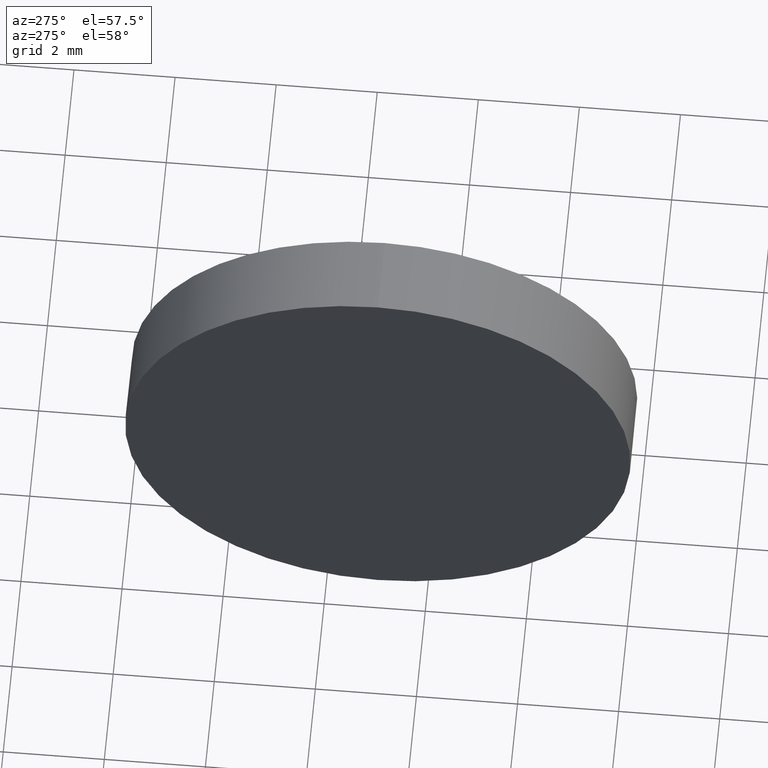
[diagram: clean part render]
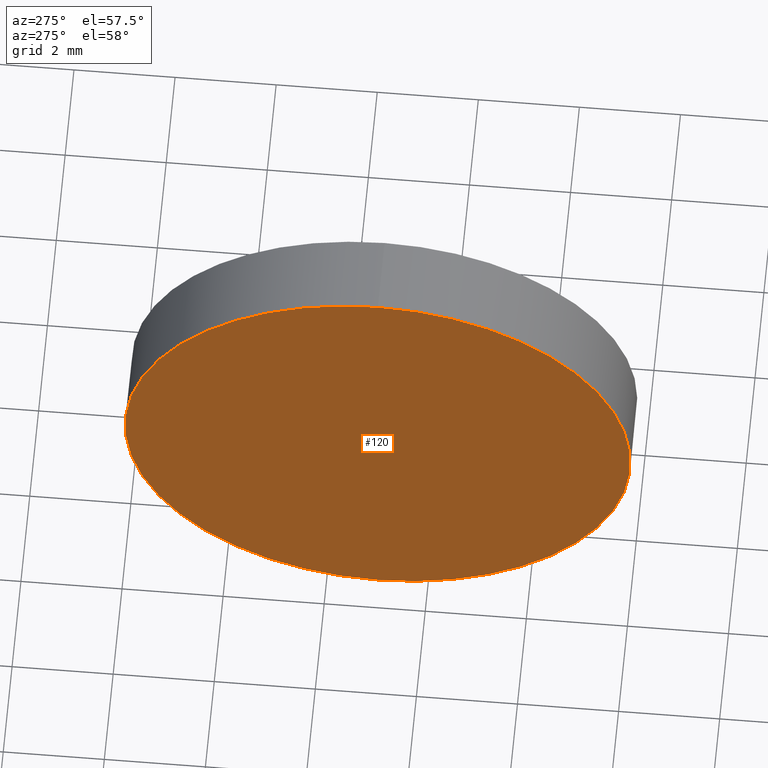
[diagram: same view with one face highlighted and labeled with its STEP entity id]
A machine part, auxiliary view. The second image highlights one B-rep face of the part: STEP entity #120.
In plain terms, the highlighted planar face has unit normal (1, 0, 0).
Its self-contained STEP definition (entity closure, byte-faithful):
#3 = ORIENTED_EDGE ( 'NONE', *, *, #144, .T. ) ;
#12 = DIRECTION ( 'NONE',  ( 0.0000000000000000000, 0.0000000000000000000, -1.000000000000000000 ) ) ;
#23 = DIRECTION ( 'NONE',  ( -1.000000000000000000, -0.0000000000000000000, -0.0000000000000000000 ) ) ;
#30 = CARTESIAN_POINT ( 'NONE',  ( 580.5091052701055800, 182.9834042929953700, 0.0000000000000000000 ) ) ;
#38 = PLANE ( 'NONE',  #155 ) ;
#50 = EDGE_LOOP ( 'NONE', ( #154, #3 ) ) ;
#53 = CARTESIAN_POINT ( 'NONE',  ( 580.5091052701055800, 182.9834042929953700, 0.0000000000000000000 ) ) ;
#69 = AXIS2_PLACEMENT_3D ( 'NONE', #30, #121, #134 ) ;
#77 = FACE_OUTER_BOUND ( 'NONE', #50, .T. ) ;
#93 = CARTESIAN_POINT ( 'NONE',  ( 580.5091052701055800, 182.9834042929953700, 0.0000000000000000000 ) ) ;
#109 = CARTESIAN_POINT ( 'NONE',  ( 580.5091052701055800, 182.9834042929953700, 5.000000000000004400 ) ) ;
#119 = VERTEX_POINT ( 'NONE', #162 ) ;
#120 = ADVANCED_FACE ( 'NONE', ( #77 ), #38, .F. ) ;
#121 = DIRECTION ( 'NONE',  ( -1.000000000000000000, -0.0000000000000000000, -0.0000000000000000000 ) ) ;
#123 = AXIS2_PLACEMENT_3D ( 'NONE', #93, #23, #136 ) ;
#134 = DIRECTION ( 'NONE',  ( 0.0000000000000000000, 0.0000000000000000000, 1.000000000000000000 ) ) ;
#136 = DIRECTION ( 'NONE',  ( 0.0000000000000000000, 0.0000000000000000000, 1.000000000000000000 ) ) ;
#139 = CIRCLE ( 'NONE', #123, 5.000000000000004400 ) ;
#144 = EDGE_CURVE ( 'NONE', #119, #169, #147, .T. ) ;
#147 = CIRCLE ( 'NONE', #69, 5.000000000000004400 ) ;
#154 = ORIENTED_EDGE ( 'NONE', *, *, #172, .T. ) ;
#155 = AXIS2_PLACEMENT_3D ( 'NONE', #53, #182, #12 ) ;
#162 = CARTESIAN_POINT ( 'NONE',  ( 580.5091052701055800, 182.9834042929953700, -5.000000000000004400 ) ) ;
#169 = VERTEX_POINT ( 'NONE', #109 ) ;
#172 = EDGE_CURVE ( 'NONE', #169, #119, #139, .T. ) ;
#182 = DIRECTION ( 'NONE',  ( 1.000000000000000000, 0.0000000000000000000, 0.0000000000000000000 ) ) ;